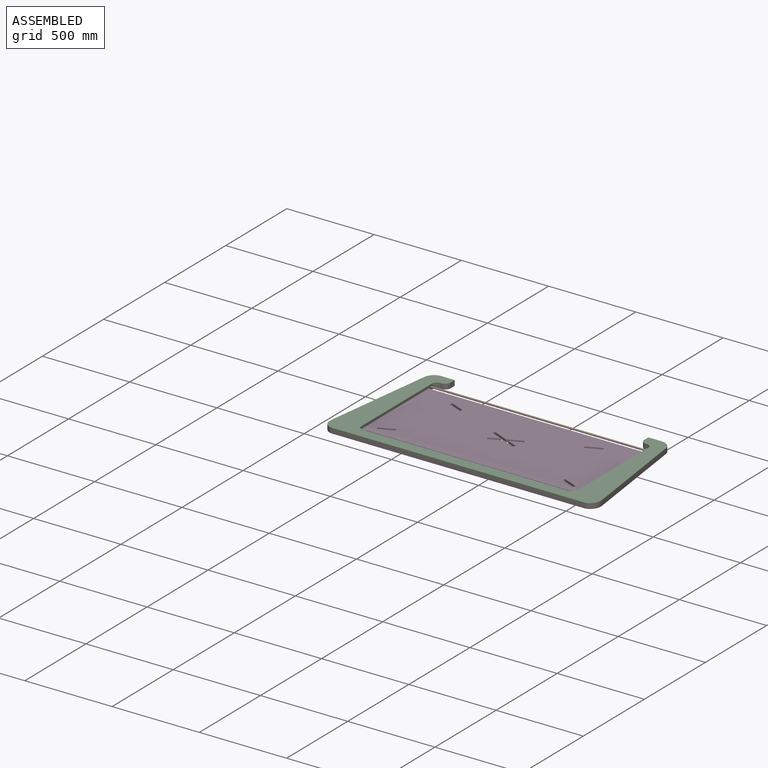
[diagram: assembled view]
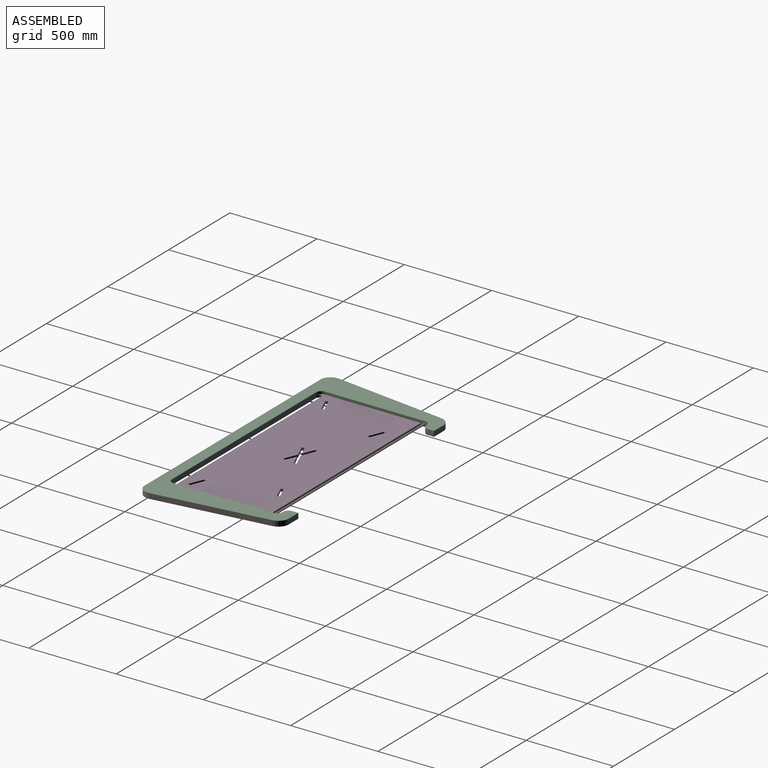
[diagram: assembled view, second angle]
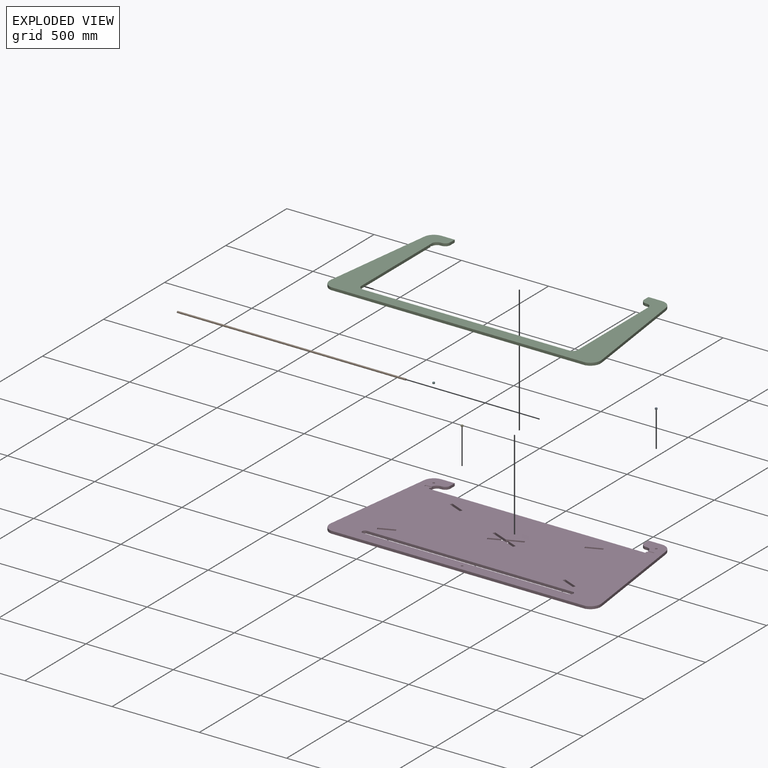
[diagram: exploded view]
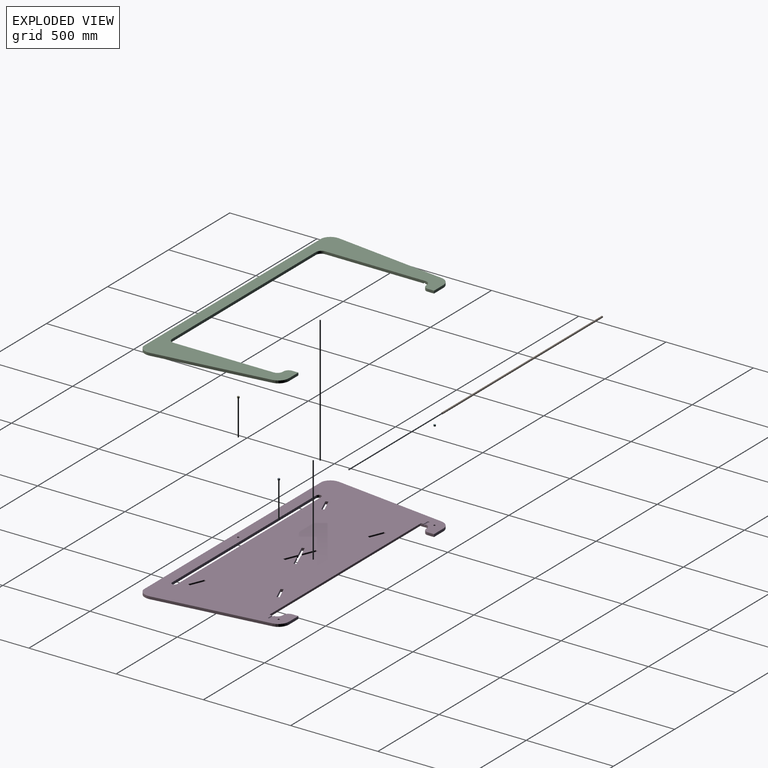
[diagram: exploded view, second angle]
ASSEMBLY  parts=6 mates=5
PART A: 3 faces, bbox 12x12x8 mm
  f0: cylinder r=6mm len=12mm, axis (0,0,-1), area 301.6mm2, adj f1,f2
  f1: plane 12x12mm, normal (0,0,1), area 113.1mm2, adj f0
  f2: plane 12x12mm, normal (0,0,-1), area 113.1mm2, adj f0
PART B: 3 faces, bbox 1310x10x10 mm
  f0: cylinder r=5mm len=1310mm, axis (-1,0,0), area 41154.9mm2, adj f1,f2
  f1: plane 10x10mm, normal (1,0,0), area 78.5mm2, adj f0
  f2: plane 10x10mm, normal (-1,0,0), area 78.5mm2, adj f0
PART C: 34 faces, bbox 1553x765x15 mm
  f0: plane 77.01x15mm, normal (0,1,0), area 1155.1mm2, adj f2,f9,f10,f23
  f1: plane 646.43x84.5mm, normal (0.99,0.13,0), area 9778.9mm2, adj f2,f8,f9,f10
  f2: cylinder r=60mm len=59.49mm, axis (0,0,-1), area 1296.7mm2, adj f0,f1,f9,f10
  f3: plane 77.01x15mm, normal (0,1,0), area 1155.1mm2, adj f4,f9,f10,f11
  f4: cylinder r=60mm len=59.49mm, axis (0,0,-1), area 1296.7mm2, adj f3,f5,f9,f10
  f5: plane 646.43x84.5mm, normal (-0.99,0.13,0), area 9778.9mm2, adj f4,f6,f9,f10
  f6: cylinder r=60mm len=66.35mm, axis (0,0,-1), area 1334.2mm2, adj f5,f7,f9,f10
  f7: plane 1459.01x15mm, normal (0,-1,0), area 21885.1mm2, adj f6,f8,f9,f10
  f8: cylinder r=60mm len=66.35mm, axis (0,0,-1), area 1334.2mm2, adj f1,f7,f9,f10
  f9: plane 1553.01x765mm, normal (0,0,1), area 261843.7mm2, adj f0,f1,f2,f3,f4,f5,f6,f7
  f10: plane 1553.01x765mm, normal (0,0,-1), area 260804.4mm2, adj f0,f1,f2,f3,f4,f5,f6,f7
  f11: plane 35x15mm, normal (1,0,0), area 525mm2, adj f3,f9,f10,f12
  f12: cylinder r=30mm len=30mm, axis (0,0,1), area 706.9mm2, adj f9,f10,f11,f13
  f13: plane 15x5mm, normal (0,-1,0), area 75mm2, adj f9,f10,f12,f14
  f14: cylinder r=30mm len=30mm, axis (0,0,1), area 706.9mm2, adj f9,f10,f13,f15
  f15: plane 575x15mm, normal (1,0,0), area 8585.7mm2, adj f9,f10,f14,f16,f27
  f16: cylinder r=30mm len=30mm, axis (0,0,1), area 706.9mm2, adj f9,f10,f15,f17
  f17: plane 1180x15mm, normal (0,1,0), area 17700mm2, adj f9,f10,f16,f18
  f18: cylinder r=30mm len=30mm, axis (0,0,1), area 706.9mm2, adj f9,f10,f17,f19
  f19: plane 575x15mm, normal (-1,0,0), area 8585.7mm2, adj f9,f10,f18,f20,f24
  f20: cylinder r=30mm len=30mm, axis (0,0,1), area 706.9mm2, adj f9,f10,f19,f21
  f21: plane 15x5mm, normal (0,-1,0), area 75mm2, adj f9,f10,f20,f22
  f22: cylinder r=30mm len=30mm, axis (0,0,1), area 706.9mm2, adj f9,f10,f21,f23
  f23: plane 35x15mm, normal (-1,0,0), area 525mm2, adj f0,f9,f10,f22
  f24: cylinder r=5mm len=35mm, axis (1,0,0), area 549.8mm2, adj f10,f19,f25
  f25: plane 10x5mm, normal (-1,0,0), area 39.3mm2, adj f10,f24
  f26: plane 10x5mm, normal (1,0,0), area 39.3mm2, adj f10,f27
  f27: cylinder r=5mm len=35mm, axis (1,0,0), area 549.8mm2, adj f10,f15,f26
  f28: cylinder r=6mm len=12mm, axis (0,0,-1), area 113.1mm2, adj f10,f29
  f29: plane 12x12mm, normal (0,0,-1), area 113.1mm2, adj f28
  f30: cylinder r=6mm len=12mm, axis (0,0,-1), area 113.1mm2, adj f10,f31
  f31: plane 12x12mm, normal (0,0,-1), area 113.1mm2, adj f30
  f32: cylinder r=6mm len=12mm, axis (0,0,-1), area 113.1mm2, adj f10,f33
  f33: plane 12x12mm, normal (0,0,-1), area 113.1mm2, adj f32
PART D: 64 faces, bbox 1553x765x15 mm
  f0: plane 1553.01x765mm, normal (0,0,1), area 933025.9mm2, adj f2,f3,f4,f5,f6,f7,f8,f9
  f1: plane 1553.01x765mm, normal (0,0,-1), area 929081.3mm2, adj f2,f3,f4,f5,f6,f7,f8,f9
  f2: plane 77.01x15mm, normal (0,1,0), area 1155.1mm2, adj f0,f1,f4,f24
  f3: plane 646.43x84.5mm, normal (0.99,0.13,0), area 9778.9mm2, adj f0,f1,f4,f14
  f4: cylinder r=60mm len=59.49mm, axis (0,0,-1), area 1296.7mm2, adj f0,f1,f2,f3
  f5: plane 77.01x15mm, normal (0,1,0), area 1155.1mm2, adj f0,f1,f6,f15
  f6: cylinder r=60mm len=59.49mm, axis (0,0,-1), area 1296.7mm2, adj f0,f1,f5,f7
  f7: plane 646.43x84.5mm, normal (-0.99,0.13,0), area 9778.9mm2, adj f0,f1,f6,f8
  f8: cylinder r=60mm len=66.35mm, axis (0,0,-1), area 1334.2mm2, adj f0,f1,f7,f9
  f9: plane 1459.01x15mm, normal (0,-1,0), area 21885.1mm2, adj f0,f1,f8,f14
  f10: cylinder r=15mm len=30mm, axis (0,0,-1), area 706.9mm2, adj f0,f1,f11,f13
  f11: plane 1180x15mm, normal (0,-1,0), area 17700mm2, adj f0,f1,f10,f12
  f12: cylinder r=15mm len=30mm, axis (0,0,-1), area 706.9mm2, adj f0,f1,f11,f13
  f13: plane 1180x15mm, normal (0,1,0), area 17700mm2, adj f0,f1,f10,f12
  f14: cylinder r=60mm len=66.35mm, axis (0,0,-1), area 1334.2mm2, adj f0,f1,f3,f9
  f15: plane 35x15mm, normal (1,0,0), area 525mm2, adj f0,f1,f5,f16
  f16: cylinder r=30mm len=30mm, axis (0,0,1), area 706.9mm2, adj f0,f1,f15,f17
  f17: plane 15x5mm, normal (0,-1,0), area 75mm2, adj f0,f1,f16,f18
  f18: cylinder r=30mm len=30mm, axis (0,0,1), area 706.9mm2, adj f0,f1,f17,f19
  f19: plane 29.02x15mm, normal (1,0,0), area 365.9mm2, adj f0,f1,f18,f25,f28
  f20: plane 29.02x15mm, normal (-1,0,0), area 365.9mm2, adj f0,f1,f21,f25,f27
  f21: cylinder r=30mm len=30mm, axis (0,0,1), area 706.9mm2, adj f0,f1,f20,f22
  f22: plane 15x5mm, normal (0,-1,0), area 75mm2, adj f0,f1,f21,f23
  f23: cylinder r=30mm len=30mm, axis (0,0,1), area 706.9mm2, adj f0,f1,f22,f24
  f24: plane 35x15mm, normal (-1,0,0), area 525mm2, adj f0,f1,f2,f23
  f25: plane 1240x15mm, normal (0,0.97,-0.26), area 19256.1mm2, adj f0,f1,f19,f20
  f26: plane 10x5mm, normal (-1,0,0), area 39.3mm2, adj f0,f27
  f27: cylinder r=5mm len=35mm, axis (-1,0,0), area 549.8mm2, adj f0,f20,f26
  f28: cylinder r=5mm len=35mm, axis (-1,0,0), area 549.8mm2, adj f0,f19,f29
  f29: plane 10x5mm, normal (1,0,0), area 39.3mm2, adj f0,f28
  f30: plane 82.95x34.91mm, normal (-0.39,-0.92,0), area 1350mm2, adj f0,f1,f31,f33
  f31: plane 15x13.83mm, normal (0.92,-0.39,0), area 225mm2, adj f0,f1,f30,f32
  f32: plane 82.95x34.91mm, normal (0.39,0.92,0), area 1350mm2, adj f0,f1,f31,f33
  f33: plane 15x13.83mm, normal (-0.92,0.39,0), area 225mm2, adj f0,f1,f30,f32
  f34: plane 82.95x34.91mm, normal (-0.39,-0.92,0), area 1350mm2, adj f0,f1,f35,f37
  f35: plane 15x13.83mm, normal (0.92,-0.39,0), area 225mm2, adj f0,f1,f34,f36
  f36: plane 82.95x34.91mm, normal (0.39,0.92,0), area 1350mm2, adj f0,f1,f35,f37
  f37: plane 15x13.83mm, normal (-0.92,0.39,0), area 225mm2, adj f0,f1,f34,f36
  f38: plane 82.95x34.91mm, normal (0.39,-0.92,0), area 1350mm2, adj f0,f1,f39,f41
  f39: plane 15x13.83mm, normal (0.92,0.39,0), area 225mm2, adj f0,f1,f38,f40
  f40: plane 82.95x34.91mm, normal (-0.39,0.92,0), area 1350mm2, adj f0,f1,f39,f41
  f41: plane 15x13.83mm, normal (-0.92,-0.39,0), area 225mm2, adj f0,f1,f38,f40
  f42: plane 15x13.83mm, normal (-0.92,0.39,0), area 225mm2, adj f0,f1,f43,f53
  f43: plane 60.94x25.65mm, normal (-0.39,-0.92,0), area 991.7mm2, adj f0,f1,f42,f44
  f44: plane 72.12x30.35mm, normal (-0.39,0.92,0), area 1173.7mm2, adj f0,f1,f43,f45
  f45: plane 15x13.83mm, normal (-0.92,-0.39,0), area 225mm2, adj f0,f1,f44,f46
  f46: plane 85.63x36.04mm, normal (0.39,-0.92,0), area 1393.6mm2, adj f0,f1,f45,f47
  f47: plane 85.63x36.04mm, normal (-0.39,-0.92,0), area 1393.6mm2, adj f0,f1,f46,f48
  f48: plane 15x13.83mm, normal (0.92,-0.39,0), area 225mm2, adj f0,f1,f47,f49
  f49: plane 72.12x30.35mm, normal (0.39,0.92,0), area 1173.7mm2, adj f0,f1,f48,f50
  f50: plane 60.94x25.65mm, normal (0.39,-0.92,0), area 991.7mm2, adj f0,f1,f49,f51
  f51: plane 15x13.83mm, normal (0.92,0.39,0), area 225mm2, adj f0,f1,f50,f52
  f52: plane 74.45x31.34mm, normal (-0.39,0.92,0), area 1211.7mm2, adj f0,f1,f51,f53
  f53: plane 74.45x31.34mm, normal (0.39,0.92,0), area 1211.7mm2, adj f0,f1,f42,f52
  f54: plane 82.95x34.91mm, normal (0.39,-0.92,0), area 1350mm2, adj f0,f1,f55,f57
  f55: plane 15x13.83mm, normal (0.92,0.39,0), area 225mm2, adj f0,f1,f54,f56
  f56: plane 82.95x34.91mm, normal (-0.39,0.92,0), area 1350mm2, adj f0,f1,f55,f57
  f57: plane 15x13.83mm, normal (-0.92,-0.39,0), area 225mm2, adj f0,f1,f54,f56
  f58: cylinder r=6mm len=12mm, axis (0,0,1), area 188.5mm2, adj f0,f59
  f59: plane 12x12mm, normal (0,0,1), area 113.1mm2, adj f58
  f60: cylinder r=6mm len=12mm, axis (0,0,1), area 188.5mm2, adj f0,f61
  f61: plane 12x12mm, normal (0,0,1), area 113.1mm2, adj f60
  f62: cylinder r=6mm len=12mm, axis (0,0,1), area 188.5mm2, adj f0,f63
  f63: plane 12x12mm, normal (0,0,1), area 113.1mm2, adj f62
PART E: same geometry as A
PART F: same geometry as A
PLACE A t=(637.5,328.57,-1)mm
PLACE B t=(0,282.57,0)mm
PLACE C t=(0,317.57,7.5)mm
PLACE D t=(0,317.57,-7.5)mm
PLACE E t=(0,-349.93,-1)mm
PLACE F t=(-637.5,328.57,-1)mm
MATE fastened D.f62 <-> E.f0  axis (0,0,1) through (0,-349.93,-5)mm
MATE fastened C.f28 <-> E.f0  axis (0,0,-1) through (0,-349.93,3)mm
MATE revolute D.f27 <-> B.f0  axis (1,0,0) through (-655,282.57,0)mm
MATE fastened D.f60 <-> F.f0  axis (0,0,1) through (-637.5,328.57,-5)mm
MATE fastened D.f58 <-> A.f0  axis (0,0,1) through (637.5,328.57,-5)mm
